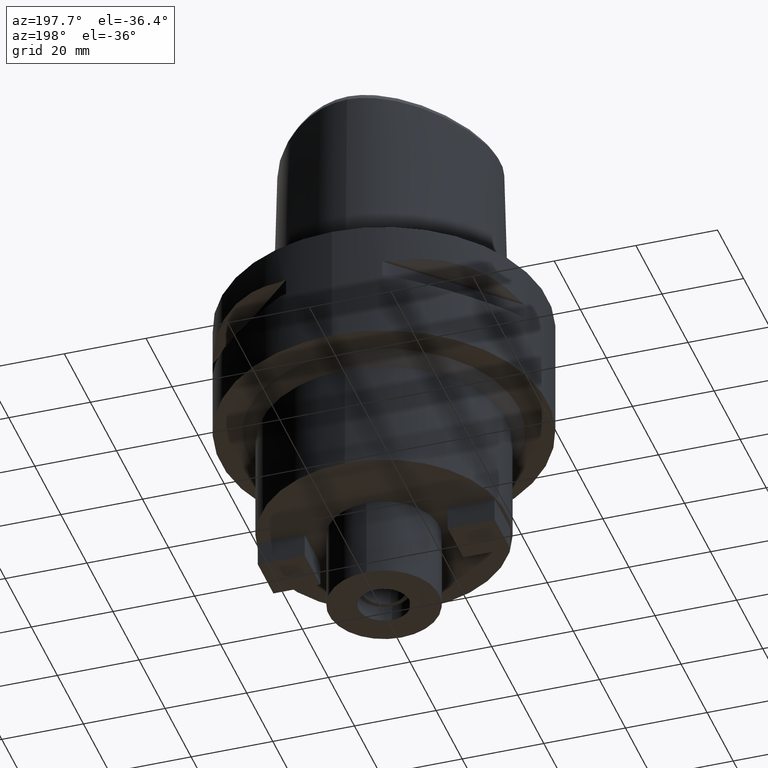
[diagram: clean part render]
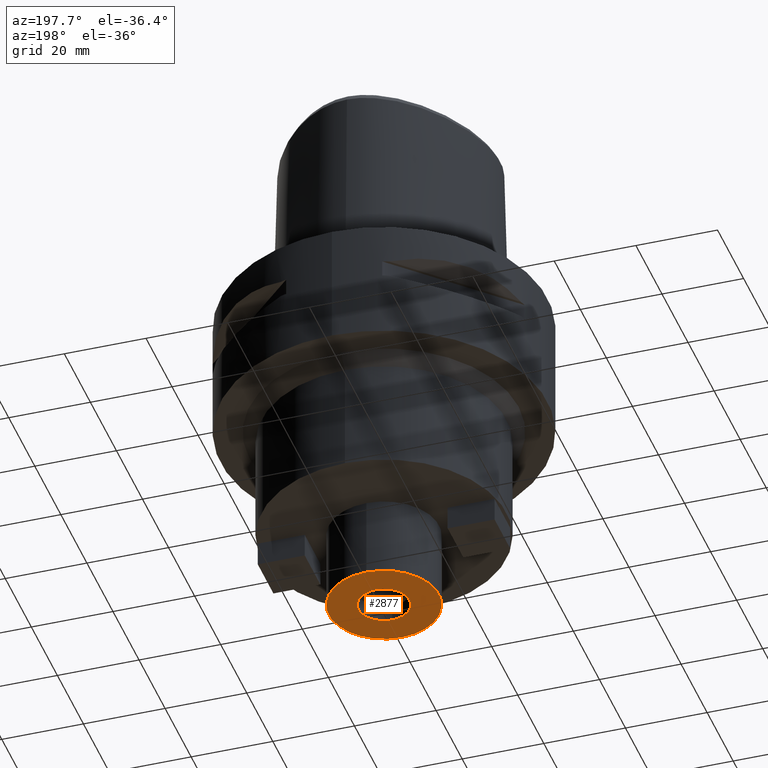
[diagram: same view with one face highlighted and labeled with its STEP entity id]
A machine part, auxiliary view. The second image highlights one B-rep face of the part: STEP entity #2877.
In plain terms, the highlighted planar face has unit normal (0, 0, -1).
Its self-contained STEP definition (entity closure, byte-faithful):
#666=CARTESIAN_POINT('',(0.E0,1.273632671113E-14,-8.E1));
#667=DIRECTION('',(0.E0,0.E0,1.E0));
#668=DIRECTION('',(0.E0,-1.E0,0.E0));
#669=AXIS2_PLACEMENT_3D('',#666,#667,#668);
#674=CARTESIAN_POINT('',(0.E0,1.273632671113E-14,-8.E1));
#675=DIRECTION('',(0.E0,0.E0,1.E0));
#676=DIRECTION('',(0.E0,1.E0,0.E0));
#677=AXIS2_PLACEMENT_3D('',#674,#675,#676);
#682=CARTESIAN_POINT('',(0.E0,1.273632671113E-14,-8.E1));
#683=DIRECTION('',(0.E0,0.E0,-1.E0));
#684=DIRECTION('',(0.E0,-1.E0,0.E0));
#685=AXIS2_PLACEMENT_3D('',#682,#683,#684);
#690=CARTESIAN_POINT('',(0.E0,1.273632671113E-14,-8.E1));
#691=DIRECTION('',(0.E0,0.E0,-1.E0));
#692=DIRECTION('',(0.E0,1.E0,0.E0));
#693=AXIS2_PLACEMENT_3D('',#690,#691,#692);
#1788=CARTESIAN_POINT('',(0.E0,1.35E1,-8.E1));
#1789=VERTEX_POINT('',#1788);
#1790=CARTESIAN_POINT('',(0.E0,-1.35E1,-8.E1));
#1791=VERTEX_POINT('',#1790);
#1792=CARTESIAN_POINT('',(0.E0,-6.25E0,-8.E1));
#1793=CARTESIAN_POINT('',(0.E0,6.25E0,-8.E1));
#1794=VERTEX_POINT('',#1792);
#1795=VERTEX_POINT('',#1793);
#2862=CARTESIAN_POINT('',(0.E0,0.E0,-8.E1));
#2863=DIRECTION('',(0.E0,0.E0,-1.E0));
#2864=DIRECTION('',(0.E0,-1.E0,0.E0));
#2865=AXIS2_PLACEMENT_3D('',#2862,#2863,#2864);
#2866=PLANE('',#2865);
#2867=ORIENTED_EDGE('',*,*,#2855,.T.);
#2868=ORIENTED_EDGE('',*,*,#2844,.T.);
#2869=EDGE_LOOP('',(#2867,#2868));
#2870=FACE_OUTER_BOUND('',#2869,.F.);
#2872=ORIENTED_EDGE('',*,*,#2871,.T.);
#2874=ORIENTED_EDGE('',*,*,#2873,.T.);
#2875=EDGE_LOOP('',(#2872,#2874));
#2876=FACE_BOUND('',#2875,.F.);
#670=CIRCLE('',#669,1.35E1);
#678=CIRCLE('',#677,1.35E1);
#686=CIRCLE('',#685,6.25E0);
#694=CIRCLE('',#693,6.25E0);
#2844=EDGE_CURVE('',#1789,#1791,#678,.T.);
#2855=EDGE_CURVE('',#1791,#1789,#670,.T.);
#2871=EDGE_CURVE('',#1794,#1795,#686,.T.);
#2873=EDGE_CURVE('',#1795,#1794,#694,.T.);
#2877=ADVANCED_FACE('',(#2870,#2876),#2866,.T.);